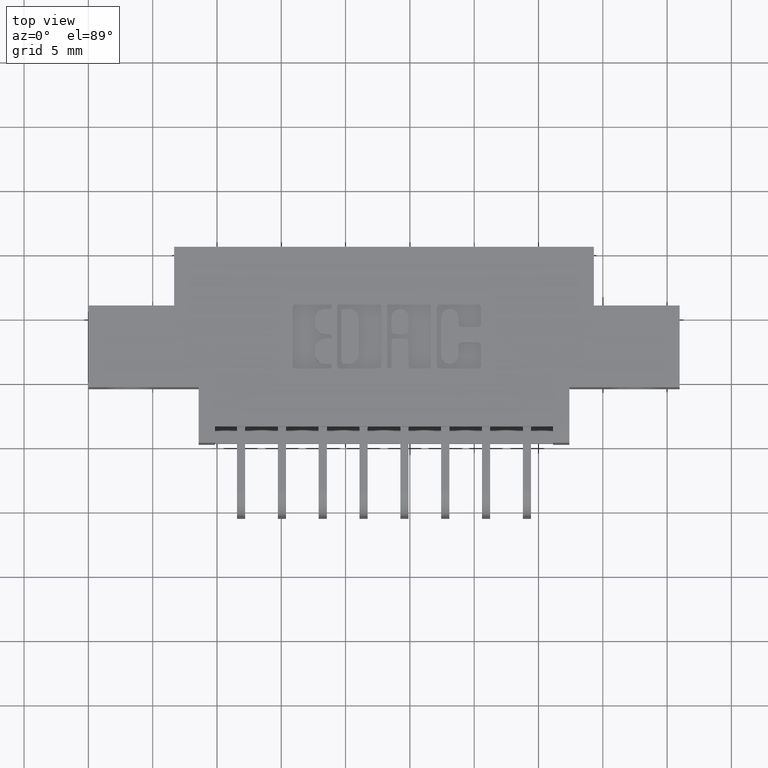
[diagram: clean part render]
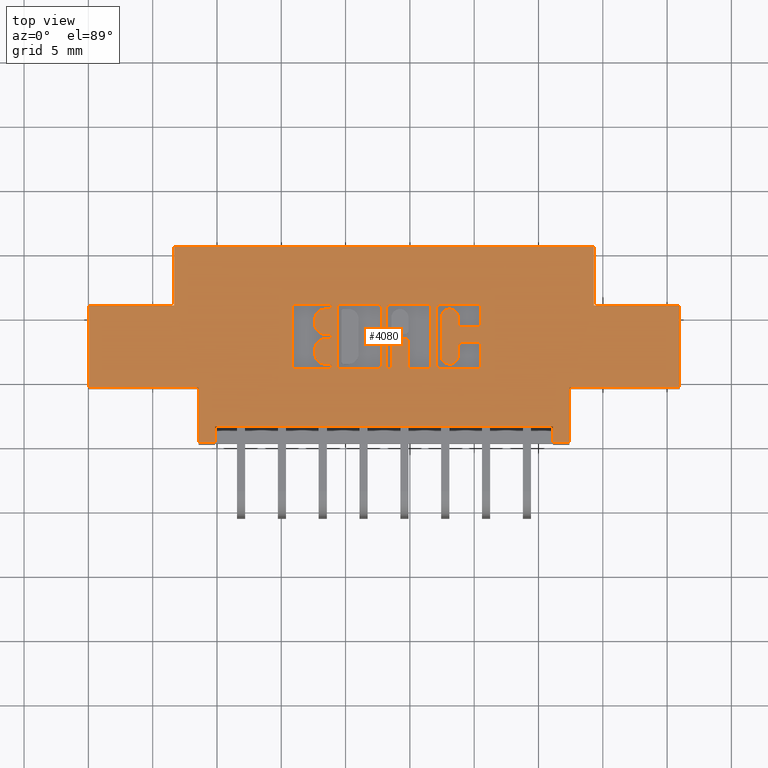
[diagram: same view with one face highlighted and labeled with its STEP entity id]
A machine part, top view. The second image highlights one B-rep face of the part: STEP entity #4080.
In plain terms, the highlighted planar face has unit normal (0, 0, -1).
Its self-contained STEP definition (entity closure, byte-faithful):
#6 = DIRECTION ( 'NONE',  ( -1.000000000000000000, 0.0000000000000000000, 0.0000000000000000000 ) ) ;
#25 = ORIENTED_EDGE ( 'NONE', *, *, #10010, .F. ) ;
#29 = LINE ( 'NONE', #836, #12358 ) ;
#32 = EDGE_CURVE ( 'NONE', #1142, #4403, #7017, .T. ) ;
#59 = DIRECTION ( 'NONE',  ( 1.000000000000000000, -0.0000000000000000000, -0.0000000000000000000 ) ) ;
#69 = VERTEX_POINT ( 'NONE', #12059 ) ;
#75 = VERTEX_POINT ( 'NONE', #8448 ) ;
#77 = EDGE_LOOP ( 'NONE', ( #8104, #9866, #8359, #11390, #12385, #6584, #12799, #869, #2582, #9027, #4754, #200, #8208, #5541, #12244, #2250 ) ) ;
#106 = VERTEX_POINT ( 'NONE', #3118 ) ;
#115 = CARTESIAN_POINT ( 'NONE',  ( 0.7246370600050841000, 0.3181290308573566100, 0.0000000000000000000 ) ) ;
#124 = VECTOR ( 'NONE', #732, 39.37007874015748100 ) ;
#168 = CIRCLE ( 'NONE', #9248, 0.009815670203788042300 ) ;
#189 = CARTESIAN_POINT ( 'NONE',  ( 1.810000000000000100, 0.4199999999999999800, 0.0000000000000000000 ) ) ;
#191 = EDGE_CURVE ( 'NONE', #9264, #11067, #4993, .T. ) ;
#193 = VERTEX_POINT ( 'NONE', #5611 ) ;
#200 = ORIENTED_EDGE ( 'NONE', *, *, #5115, .T. ) ;
#232 = ORIENTED_EDGE ( 'NONE', *, *, #3123, .F. ) ;
#235 = ORIENTED_EDGE ( 'NONE', *, *, #2152, .F. ) ;
#256 = LINE ( 'NONE', #2873, #12873 ) ;
#272 = CARTESIAN_POINT ( 'NONE',  ( 0.0000000000000000000, 0.0000000000000000000, 0.0000000000000000000 ) ) ;
#302 = CARTESIAN_POINT ( 'NONE',  ( 0.7381336065353100200, 0.3250000000000201600, 0.0000000000000000000 ) ) ;
#305 = EDGE_CURVE ( 'NONE', #2327, #4636, #4854, .T. ) ;
#312 = AXIS2_PLACEMENT_3D ( 'NONE', #2247, #7260, #4289 ) ;
#345 = ORIENTED_EDGE ( 'NONE', *, *, #191, .T. ) ;
#350 = LINE ( 'NONE', #12554, #10627 ) ;
#360 = CARTESIAN_POINT ( 'NONE',  ( 1.076038053301265500, 0.2366589681657897700, 0.0000000000000000000 ) ) ;
#403 = VERTEX_POINT ( 'NONE', #6404 ) ;
#511 = CIRCLE ( 'NONE', #3816, 0.009815670203796920600 ) ;
#538 = LINE ( 'NONE', #923, #1772 ) ;
#557 = EDGE_CURVE ( 'NONE', #9100, #6440, #11625, .T. ) ;
#594 = EDGE_CURVE ( 'NONE', #2855, #10272, #4505, .T. ) ;
#631 = DIRECTION ( 'NONE',  ( 0.0000000000000000000, 1.000000000000000000, -0.0000000000000000000 ) ) ;
#633 = DIRECTION ( 'NONE',  ( -1.000000000000000000, -1.189163988687022500E-013, 0.0000000000000000000 ) ) ;
#649 = VERTEX_POINT ( 'NONE', #7257 ) ;
#678 = ORIENTED_EDGE ( 'NONE', *, *, #6517, .F. ) ;
#688 = AXIS2_PLACEMENT_3D ( 'NONE', #10535, #10803, #9839 ) ;
#703 = ORIENTED_EDGE ( 'NONE', *, *, #5933, .F. ) ;
#717 = CARTESIAN_POINT ( 'NONE',  ( 0.7381336065353100200, 0.3250000000000201600, 0.0000000000000000000 ) ) ;
#732 = DIRECTION ( 'NONE',  ( 0.0000000000000000000, -1.000000000000000000, 0.0000000000000000000 ) ) ;
#735 = VERTEX_POINT ( 'NONE', #1371 ) ;
#741 = AXIS2_PLACEMENT_3D ( 'NONE', #717, #1852, #9717 ) ;
#756 = LINE ( 'NONE', #11986, #6529 ) ;
#775 = DIRECTION ( 'NONE',  ( -0.0000000000000000000, 1.000000000000000000, -0.0000000000000000000 ) ) ;
#794 = CARTESIAN_POINT ( 'NONE',  ( 0.7381336065353514300, 0.4162857328953860600, 0.0000000000000000000 ) ) ;
#833 = CARTESIAN_POINT ( 'NONE',  ( 1.810000000000000100, 0.5999999999999999800, 0.0000000000000000000 ) ) ;
#836 = CARTESIAN_POINT ( 'NONE',  ( 0.2625000000000000100, 0.4199999999999999800, 0.0000000000000000000 ) ) ;
#852 = VERTEX_POINT ( 'NONE', #3116 ) ;
#869 = ORIENTED_EDGE ( 'NONE', *, *, #10355, .F. ) ;
#884 = EDGE_CURVE ( 'NONE', #1449, #9126, #10844, .T. ) ;
#889 = CARTESIAN_POINT ( 'NONE',  ( 0.7707707099630102300, 0.4133410318342099500, 0.0000000000000000000 ) ) ;
#918 = VERTEX_POINT ( 'NONE', #10511 ) ;
#923 = CARTESIAN_POINT ( 'NONE',  ( 0.0000000000000000000, 0.0000000000000000000, 0.0000000000000000000 ) ) ;
#928 = CARTESIAN_POINT ( 'NONE',  ( 1.066222383097458600, 0.2366589681657897700, 0.0000000000000000000 ) ) ;
#952 = VERTEX_POINT ( 'NONE', #9465 ) ;
#1010 = CARTESIAN_POINT ( 'NONE',  ( 0.0000000000000000000, 0.3063502266127573500, 0.0000000000000000000 ) ) ;
#1025 = VERTEX_POINT ( 'NONE', #11577 ) ;
#1034 = CARTESIAN_POINT ( 'NONE',  ( 0.7381336065353356600, 0.2337142671046477700, 0.0000000000000000000 ) ) ;
#1060 = CARTESIAN_POINT ( 'NONE',  ( 0.7381336064153889400, 0.3181290308573566100, 0.0000000000000000000 ) ) ;
#1077 = DIRECTION ( 'NONE',  ( 0.0000000000000000000, 1.000000000000000000, -0.0000000000000000000 ) ) ;
#1079 = ORIENTED_EDGE ( 'NONE', *, *, #6640, .T. ) ;
#1085 = DIRECTION ( 'NONE',  ( 1.000000000000000000, 0.0000000000000000000, 0.0000000000000000000 ) ) ;
#1142 = VERTEX_POINT ( 'NONE', #3098 ) ;
#1167 = CARTESIAN_POINT ( 'NONE',  ( 0.3375000000000001300, 0.0000000000000000000, 0.0000000000000000000 ) ) ;
#1232 = CARTESIAN_POINT ( 'NONE',  ( 0.9371463199174503400, 0.3083133606535453700, 0.0000000000000000000 ) ) ;
#1255 = DIRECTION ( 'NONE',  ( 1.000000000000000000, 0.0000000000000000000, 0.0000000000000000000 ) ) ;
#1265 = AXIS2_PLACEMENT_3D ( 'NONE', #6514, #2064, #10148 ) ;
#1300 = EDGE_LOOP ( 'NONE', ( #11209, #2968, #12006, #6008, #9976, #235, #1430, #10022, #8355, #5066, #5649, #11569, #8981, #11113, #9897, #9263, #8320, #2706, #11795, #703, #7421 ) ) ;
#1313 = VERTEX_POINT ( 'NONE', #7660 ) ;
#1322 = CARTESIAN_POINT ( 'NONE',  ( 1.039229290037011700, 0.4133410318342102300, 0.0000000000000000000 ) ) ;
#1355 = DIRECTION ( 'NONE',  ( 1.000000000000000000, 0.0000000000000000000, 0.0000000000000000000 ) ) ;
#1371 = CARTESIAN_POINT ( 'NONE',  ( 0.7707707099629761400, 0.2268432979619829900, 0.0000000000000000000 ) ) ;
#1392 = VECTOR ( 'NONE', #59, 39.37007874015748100 ) ;
#1395 = AXIS2_PLACEMENT_3D ( 'NONE', #1034, #6979, #9989 ) ;
#1418 = CARTESIAN_POINT ( 'NONE',  ( 1.191862961706134500, 0.2268432979619829900, 0.0000000000000000000 ) ) ;
#1424 = LINE ( 'NONE', #5974, #1589 ) ;
#1430 = ORIENTED_EDGE ( 'NONE', *, *, #7328, .F. ) ;
#1445 = VECTOR ( 'NONE', #10748, 39.37007874015748100 ) ;
#1449 = VERTEX_POINT ( 'NONE', #115 ) ;
#1456 = EDGE_CURVE ( 'NONE', #2572, #12152, #1470, .T. ) ;
#1470 = CIRCLE ( 'NONE', #10415, 0.009815670203840084000 ) ;
#1490 = FACE_BOUND ( 'NONE', #8690, .T. ) ;
#1575 = CARTESIAN_POINT ( 'NONE',  ( 1.039229290037013900, 0.4231567020380064300, 0.0000000000000000000 ) ) ;
#1589 = VECTOR ( 'NONE', #11985, 39.37007874015748100 ) ;
#1593 = DIRECTION ( 'NONE',  ( 1.000000000000000000, 0.0000000000000000000, 0.0000000000000000000 ) ) ;
#1630 = CARTESIAN_POINT ( 'NONE',  ( 0.3375000000000001300, 0.1699999999999999800, 0.0000000000000000000 ) ) ;
#1718 = DIRECTION ( 'NONE',  ( -0.0000000000000000000, 0.0000000000000000000, 1.000000000000000000 ) ) ;
#1724 = DIRECTION ( 'NONE',  ( -0.0000000000000000000, 0.0000000000000000000, 1.000000000000000000 ) ) ;
#1732 = LINE ( 'NONE', #7777, #11699 ) ;
#1744 = AXIS2_PLACEMENT_3D ( 'NONE', #1232, #7231, #10110 ) ;
#1772 = VECTOR ( 'NONE', #1992, 39.37007874015748100 ) ;
#1783 = CARTESIAN_POINT ( 'NONE',  ( 0.0000000000000000000, 0.1699999999999999800, 0.0000000000000000000 ) ) ;
#1789 = CIRCLE ( 'NONE', #8847, 0.009815670203806754800 ) ;
#1837 = LINE ( 'NONE', #272, #6859 ) ;
#1850 = AXIS2_PLACEMENT_3D ( 'NONE', #8528, #7626, #10583 ) ;
#1852 = DIRECTION ( 'NONE',  ( -0.0000000000000000000, 0.0000000000000000000, 1.000000000000000000 ) ) ;
#1854 = CARTESIAN_POINT ( 'NONE',  ( 1.079964321382818500, 0.3831578459575294400, 0.0000000000000000000 ) ) ;
#1856 = CARTESIAN_POINT ( 'NONE',  ( 1.079964321382818500, 0.2668421540424528200, 0.0000000000000000000 ) ) ;
#1892 = CARTESIAN_POINT ( 'NONE',  ( 1.132478156973179000, 0.2965345564089684700, 0.0000000000000000000 ) ) ;
#1975 = VERTEX_POINT ( 'NONE', #6416 ) ;
#1983 = EDGE_CURVE ( 'NONE', #9264, #5960, #5675, .T. ) ;
#1992 = DIRECTION ( 'NONE',  ( 1.000000000000000000, 0.0000000000000000000, 0.0000000000000000000 ) ) ;
#1998 = VERTEX_POINT ( 'NONE', #5187 ) ;
#1999 = CARTESIAN_POINT ( 'NONE',  ( 0.0000000000000000000, 0.4231567020380508400, 0.0000000000000000000 ) ) ;
#2001 = VERTEX_POINT ( 'NONE', #5426 ) ;
#2015 = CARTESIAN_POINT ( 'NONE',  ( 0.0000000000000000000, 0.4199999999999999800, 0.0000000000000000000 ) ) ;
#2064 = DIRECTION ( 'NONE',  ( -0.0000000000000000000, 0.0000000000000000000, 1.000000000000000000 ) ) ;
#2066 = LINE ( 'NONE', #2856, #6421 ) ;
#2067 = DIRECTION ( 'NONE',  ( 0.0000000000000000000, -1.000000000000000000, 0.0000000000000000000 ) ) ;
#2152 = EDGE_CURVE ( 'NONE', #4261, #193, #3658, .T. ) ;
#2158 = CARTESIAN_POINT ( 'NONE',  ( 0.7707707099629761400, 0.2366589681657897700, 0.0000000000000000000 ) ) ;
#2203 = VECTOR ( 'NONE', #10344, 39.37007874015748100 ) ;
#2207 = VERTEX_POINT ( 'NONE', #4157 ) ;
#2227 = VECTOR ( 'NONE', #11061, 39.37007874015748100 ) ;
#2234 = CARTESIAN_POINT ( 'NONE',  ( 1.472500000000000100, 0.1699999999999999800, 1.389974117032246100E-016 ) ) ;
#2244 = AXIS2_PLACEMENT_3D ( 'NONE', #889, #5005, #11940 ) ;
#2247 = CARTESIAN_POINT ( 'NONE',  ( 0.7246370600050841000, 0.3632811137948581700, 0.0000000000000000000 ) ) ;
#2250 = ORIENTED_EDGE ( 'NONE', *, *, #4846, .T. ) ;
#2273 = CIRCLE ( 'NONE', #3119, 0.006870969142663594700 ) ;
#2286 = VECTOR ( 'NONE', #5087, 39.37007874015748100 ) ;
#2293 = CARTESIAN_POINT ( 'NONE',  ( 1.191862961706132000, 0.4133410318342107300, 0.0000000000000000000 ) ) ;
#2295 = DIRECTION ( 'NONE',  ( 0.0000000000000000000, 1.000000000000000000, -0.0000000000000000000 ) ) ;
#2296 = LINE ( 'NONE', #1010, #8855 ) ;
#2311 = EDGE_LOOP ( 'NONE', ( #8311, #2942, #6605, #9429, #12811, #10592, #10300, #4433 ) ) ;
#2326 = DIRECTION ( 'NONE',  ( -0.0000000000000000000, 0.0000000000000000000, 1.000000000000000000 ) ) ;
#2327 = VERTEX_POINT ( 'NONE', #7442 ) ;
#2328 = VERTEX_POINT ( 'NONE', #1418 ) ;
#2329 = CARTESIAN_POINT ( 'NONE',  ( 0.9135887114283309800, 0.2337142671046477700, 0.0000000000000000000 ) ) ;
#2333 = CARTESIAN_POINT ( 'NONE',  ( 0.7246370600051255100, 0.3780046191005195800, 0.0000000000000000000 ) ) ;
#2337 = EDGE_CURVE ( 'NONE', #2328, #12290, #8302, .T. ) ;
#2338 = AXIS2_PLACEMENT_3D ( 'NONE', #3731, #9783, #3770 ) ;
#2346 = LINE ( 'NONE', #833, #7048 ) ;
#2392 = EDGE_CURVE ( 'NONE', #3537, #11095, #10456, .T. ) ;
#2420 = VERTEX_POINT ( 'NONE', #9668 ) ;
#2520 = AXIS2_PLACEMENT_3D ( 'NONE', #12191, #9295, #1255 ) ;
#2549 = CIRCLE ( 'NONE', #312, 0.03141014465217440600 ) ;
#2553 = VECTOR ( 'NONE', #2610, 39.37007874015748100 ) ;
#2572 = VERTEX_POINT ( 'NONE', #4210 ) ;
#2582 = ORIENTED_EDGE ( 'NONE', *, *, #11199, .F. ) ;
#2610 = DIRECTION ( 'NONE',  ( -0.0000000000000000000, 1.000000000000000000, -0.0000000000000000000 ) ) ;
#2642 = LINE ( 'NONE', #8503, #2971 ) ;
#2671 = DIRECTION ( 'NONE',  ( -0.0000000000000000000, 0.0000000000000000000, 1.000000000000000000 ) ) ;
#2690 = CARTESIAN_POINT ( 'NONE',  ( 1.076038053301265500, 0.2268432979619829900, 0.0000000000000000000 ) ) ;
#2706 = ORIENTED_EDGE ( 'NONE', *, *, #11682, .F. ) ;
#2711 = DIRECTION ( 'NONE',  ( -1.000000000000000000, -0.0000000000000000000, -0.0000000000000000000 ) ) ;
#2714 = CARTESIAN_POINT ( 'NONE',  ( 1.191862961706168500, 0.4231567020380508400, 0.0000000000000000000 ) ) ;
#2726 = EDGE_CURVE ( 'NONE', #7659, #9294, #168, .T. ) ;
#2730 = FACE_OUTER_BOUND ( 'NONE', #77, .T. ) ;
#2752 = DIRECTION ( 'NONE',  ( -0.0000000000000000000, 0.0000000000000000000, 1.000000000000000000 ) ) ;
#2771 = EDGE_CURVE ( 'NONE', #7506, #2207, #3774, .T. ) ;
#2774 = CARTESIAN_POINT ( 'NONE',  ( 0.0000000000000000000, 0.5999999999999999800, 0.0000000000000000000 ) ) ;
#2780 = DIRECTION ( 'NONE',  ( -1.000000000000000000, 0.0000000000000000000, -0.0000000000000000000 ) ) ;
#2804 = CARTESIAN_POINT ( 'NONE',  ( 0.6338421106199381100, 0.4231567020380325200, 0.0000000000000000000 ) ) ;
#2838 = EDGE_CURVE ( 'NONE', #9349, #7441, #2346, .T. ) ;
#2855 = VERTEX_POINT ( 'NONE', #12062 ) ;
#2856 = CARTESIAN_POINT ( 'NONE',  ( -0.0000000000000000000, 0.2268432979619829900, 0.0000000000000000000 ) ) ;
#2873 = CARTESIAN_POINT ( 'NONE',  ( -0.0000000000000000000, 0.4231567020380064300, 0.0000000000000000000 ) ) ;
#2876 = CARTESIAN_POINT ( 'NONE',  ( 0.9273306497136469800, 0.2337142671046477700, 0.0000000000000000000 ) ) ;
#2892 = VERTEX_POINT ( 'NONE', #9513 ) ;
#2907 = EDGE_CURVE ( 'NONE', #3916, #1975, #9004, .T. ) ;
#2942 = ORIENTED_EDGE ( 'NONE', *, *, #6576, .F. ) ;
#2946 = VECTOR ( 'NONE', #631, 39.37007874015748100 ) ;
#2957 = EDGE_CURVE ( 'NONE', #6186, #10143, #4400, .T. ) ;
#2964 = DIRECTION ( 'NONE',  ( 0.0000000000000000000, 0.0000000000000000000, -1.000000000000000000 ) ) ;
#2967 = ORIENTED_EDGE ( 'NONE', *, *, #12158, .F. ) ;
#2968 = ORIENTED_EDGE ( 'NONE', *, *, #7146, .F. ) ;
#2971 = VECTOR ( 'NONE', #7604, 39.37007874015748100 ) ;
#2989 = LINE ( 'NONE', #7314, #2203 ) ;
#3019 = EDGE_CURVE ( 'NONE', #12041, #12038, #2989, .T. ) ;
#3098 = CARTESIAN_POINT ( 'NONE',  ( 1.049044960240806700, 0.4133410318342007900, 0.0000000000000000000 ) ) ;
#3103 = EDGE_CURVE ( 'NONE', #3367, #12922, #12170, .T. ) ;
#3113 = CARTESIAN_POINT ( 'NONE',  ( 0.3375000000000001300, 0.1699999999999999800, 0.0000000000000000000 ) ) ;
#3116 = CARTESIAN_POINT ( 'NONE',  ( 0.7381336065353514300, 0.4094147637527355600, 0.0000000000000000000 ) ) ;
#3118 = CARTESIAN_POINT ( 'NONE',  ( 1.039229290037010600, 0.2268432979619844400, 0.0000000000000000000 ) ) ;
#3119 = AXIS2_PLACEMENT_3D ( 'NONE', #302, #7330, #1355 ) ;
#3123 = EDGE_CURVE ( 'NONE', #2001, #2892, #7535, .T. ) ;
#3126 = AXIS2_PLACEMENT_3D ( 'NONE', #8462, #7485, #4467 ) ;
#3154 = LINE ( 'NONE', #1630, #11348 ) ;
#3190 = VECTOR ( 'NONE', #3758, 39.37007874015748100 ) ;
#3210 = CARTESIAN_POINT ( 'NONE',  ( 0.6932269153529097000, 0.3780046191005195800, 0.0000000000000000000 ) ) ;
#3277 = ORIENTED_EDGE ( 'NONE', *, *, #5503, .F. ) ;
#3285 = LINE ( 'NONE', #6619, #2946 ) ;
#3292 = DIRECTION ( 'NONE',  ( -0.0000000000000000000, 0.0000000000000000000, 1.000000000000000000 ) ) ;
#3306 = DIRECTION ( 'NONE',  ( -1.000000000000000000, 0.0000000000000000000, 0.0000000000000000000 ) ) ;
#3307 = ORIENTED_EDGE ( 'NONE', *, *, #7419, .F. ) ;
#3318 = EDGE_CURVE ( 'NONE', #12290, #3916, #2642, .T. ) ;
#3325 = DIRECTION ( 'NONE',  ( -0.0000000000000000000, 0.0000000000000000000, 1.000000000000000000 ) ) ;
#3363 = EDGE_CURVE ( 'NONE', #3367, #12419, #5782, .T. ) ;
#3367 = VERTEX_POINT ( 'NONE', #4675 ) ;
#3440 = CARTESIAN_POINT ( 'NONE',  ( 0.0000000000000000000, 0.4231567020380508400, 0.0000000000000000000 ) ) ;
#3448 = CARTESIAN_POINT ( 'NONE',  ( 1.079964321382818500, 0.0000000000000000000, 0.0000000000000000000 ) ) ;
#3471 = EDGE_CURVE ( 'NONE', #403, #6186, #6395, .T. ) ;
#3493 = DIRECTION ( 'NONE',  ( 1.000000000000000000, 0.0000000000000000000, 0.0000000000000000000 ) ) ;
#3502 = ORIENTED_EDGE ( 'NONE', *, *, #2337, .F. ) ;
#3532 = DIRECTION ( 'NONE',  ( 0.0000000000000000000, -1.000000000000000000, 0.0000000000000000000 ) ) ;
#3537 = VERTEX_POINT ( 'NONE', #6680 ) ;
#3548 = DIRECTION ( 'NONE',  ( -0.0000000000000000000, 0.0000000000000000000, 1.000000000000000000 ) ) ;
#3556 = CARTESIAN_POINT ( 'NONE',  ( 1.049044960240806700, 0.0000000000000000000, 0.0000000000000000000 ) ) ;
#3565 = CARTESIAN_POINT ( 'NONE',  ( -0.0000000000000000000, 0.4094147637527355600, 0.0000000000000000000 ) ) ;
#3592 = DIRECTION ( 'NONE',  ( 1.000000000000000000, 0.0000000000000000000, 0.0000000000000000000 ) ) ;
#3610 = ORIENTED_EDGE ( 'NONE', *, *, #3103, .T. ) ;
#3643 = VECTOR ( 'NONE', #11681, 39.37007874015748100 ) ;
#3658 = CIRCLE ( 'NONE', #741, 0.006870969142663594700 ) ;
#3693 = DIRECTION ( 'NONE',  ( -1.000000000000000000, 0.0000000000000000000, -2.449293598294706900E-016 ) ) ;
#3706 = ORIENTED_EDGE ( 'NONE', *, *, #5791, .T. ) ;
#3722 = EDGE_CURVE ( 'NONE', #2420, #1313, #11467, .T. ) ;
#3723 = DIRECTION ( 'NONE',  ( 1.000000000000000000, 0.0000000000000000000, 0.0000000000000000000 ) ) ;
#3727 = CARTESIAN_POINT ( 'NONE',  ( 0.9234043816321275700, 0.4231567020380064300, 0.0000000000000000000 ) ) ;
#3731 = CARTESIAN_POINT ( 'NONE',  ( 0.9234043816321275700, 0.4133410318342099500, 0.0000000000000000000 ) ) ;
#3741 = CARTESIAN_POINT ( 'NONE',  ( 1.106221239177992200, 0.3831578459575294400, 0.0000000000000000000 ) ) ;
#3753 = EDGE_CURVE ( 'NONE', #11277, #12680, #5148, .T. ) ;
#3758 = DIRECTION ( 'NONE',  ( 1.000000000000000000, 0.0000000000000000000, 0.0000000000000000000 ) ) ;
#3770 = DIRECTION ( 'NONE',  ( 1.000000000000000000, 0.0000000000000000000, 0.0000000000000000000 ) ) ;
#3774 = CIRCLE ( 'NONE', #2338, 0.009815670203796511200 ) ;
#3816 = AXIS2_PLACEMENT_3D ( 'NONE', #11515, #5671, #3723 ) ;
#3883 = LINE ( 'NONE', #9881, #2286 ) ;
#3916 = VERTEX_POINT ( 'NONE', #12342 ) ;
#3946 = VERTEX_POINT ( 'NONE', #2329 ) ;
#3949 = AXIS2_PLACEMENT_3D ( 'NONE', #5198, #6167, #7241 ) ;
#4015 = CARTESIAN_POINT ( 'NONE',  ( -0.0000000000000000000, 0.2268432979619829900, 0.0000000000000000000 ) ) ;
#4018 = DIRECTION ( 'NONE',  ( 1.000000000000000000, 0.0000000000000000000, 0.0000000000000000000 ) ) ;
#4052 = DIRECTION ( 'NONE',  ( -0.0000000000000000000, -1.000000000000000000, -0.0000000000000000000 ) ) ;
#4057 = DIRECTION ( 'NONE',  ( -1.000000000000000000, 0.0000000000000000000, 0.0000000000000000000 ) ) ;
#4061 = CIRCLE ( 'NONE', #7031, 0.03141014465218178200 ) ;
#4066 = AXIS2_PLACEMENT_3D ( 'NONE', #7983, #5121, #12661 ) ;
#4080 = ADVANCED_FACE ( 'NONE', ( #9428, #5432, #2730, #4189, #1490 ), #9832, .F. ) ;
#4108 = CARTESIAN_POINT ( 'NONE',  ( 0.7609550397591693400, 0.4133410318342099500, 0.0000000000000000000 ) ) ;
#4117 = CIRCLE ( 'NONE', #688, 0.009815670203822599700 ) ;
#4120 = AXIS2_PLACEMENT_3D ( 'NONE', #3741, #4713, #11491 ) ;
#4150 = LINE ( 'NONE', #4015, #12058 ) ;
#4157 = CARTESIAN_POINT ( 'NONE',  ( 0.9135887114283309800, 0.4133410318342099500, 0.0000000000000000000 ) ) ;
#4176 = VERTEX_POINT ( 'NONE', #9926 ) ;
#4189 = FACE_BOUND ( 'NONE', #2311, .T. ) ;
#4194 = DIRECTION ( 'NONE',  ( -1.000000000000000000, 0.0000000000000000000, 0.0000000000000000000 ) ) ;
#4208 = LINE ( 'NONE', #9558, #10694 ) ;
#4210 = CARTESIAN_POINT ( 'NONE',  ( 1.201678631909972200, 0.4133410318341946300, 0.0000000000000000000 ) ) ;
#4239 = EDGE_CURVE ( 'NONE', #5501, #12038, #12075, .T. ) ;
#4250 = CARTESIAN_POINT ( 'NONE',  ( 0.9798444853039848200, 0.3083133606535432600, 0.0000000000000000000 ) ) ;
#4261 = VERTEX_POINT ( 'NONE', #1060 ) ;
#4289 = DIRECTION ( 'NONE',  ( 1.000000000000000000, 0.0000000000000000000, 0.0000000000000000000 ) ) ;
#4313 = VECTOR ( 'NONE', #4052, 39.37007874015748100 ) ;
#4335 = ORIENTED_EDGE ( 'NONE', *, *, #5166, .T. ) ;
#4338 = DIRECTION ( 'NONE',  ( -1.000000000000000000, -3.530861605407645300E-014, 0.0000000000000000000 ) ) ;
#4344 = CIRCLE ( 'NONE', #1744, 0.009815670203803203800 ) ;
#4354 = CIRCLE ( 'NONE', #12156, 0.02625691779518036400 ) ;
#4361 = VECTOR ( 'NONE', #4338, 39.37007874015748100 ) ;
#4387 = EDGE_CURVE ( 'NONE', #735, #5024, #4150, .T. ) ;
#4390 = AXIS2_PLACEMENT_3D ( 'NONE', #5887, #2964, #2780 ) ;
#4400 = CIRCLE ( 'NONE', #3126, 0.009815670203805936000 ) ;
#4403 = VERTEX_POINT ( 'NONE', #5896 ) ;
#4409 = VECTOR ( 'NONE', #2295, 39.37007874015748100 ) ;
#4425 = DIRECTION ( 'NONE',  ( 0.0000000000000000000, 1.000000000000000000, -0.0000000000000000000 ) ) ;
#4433 = ORIENTED_EDGE ( 'NONE', *, *, #10529, .F. ) ;
#4466 = DIRECTION ( 'NONE',  ( 1.000000000000000000, 0.0000000000000000000, 0.0000000000000000000 ) ) ;
#4467 = DIRECTION ( 'NONE',  ( 1.000000000000000000, 0.0000000000000000000, 0.0000000000000000000 ) ) ;
#4505 = CIRCLE ( 'NONE', #11649, 0.009815670203840902800 ) ;
#4541 = LINE ( 'NONE', #1999, #9975 ) ;
#4612 = CARTESIAN_POINT ( 'NONE',  ( 0.7707707099630102300, 0.4231567020380508400, 0.0000000000000000000 ) ) ;
#4627 = CARTESIAN_POINT ( 'NONE',  ( 1.132478156973165900, 0.3637718973050450000, 0.0000000000000000000 ) ) ;
#4636 = VERTEX_POINT ( 'NONE', #12835 ) ;
#4675 = CARTESIAN_POINT ( 'NONE',  ( 0.9798444853039848200, 0.2366589681657876300, 0.0000000000000000000 ) ) ;
#4696 = CARTESIAN_POINT ( 'NONE',  ( 1.142293827176967100, 0.2965345564089693600, 0.0000000000000000000 ) ) ;
#4711 = VECTOR ( 'NONE', #7253, 39.37007874015748100 ) ;
#4713 = DIRECTION ( 'NONE',  ( -0.0000000000000000000, 0.0000000000000000000, 1.000000000000000000 ) ) ;
#4719 = ORIENTED_EDGE ( 'NONE', *, *, #2392, .T. ) ;
#4745 = EDGE_CURVE ( 'NONE', #6440, #6180, #8329, .T. ) ;
#4754 = ORIENTED_EDGE ( 'NONE', *, *, #3019, .F. ) ;
#4785 = VERTEX_POINT ( 'NONE', #928 ) ;
#4791 = DIRECTION ( 'NONE',  ( 1.000000000000000000, 0.0000000000000000000, 0.0000000000000000000 ) ) ;
#4833 = DIRECTION ( 'NONE',  ( 1.000000000000000000, 0.0000000000000000000, 0.0000000000000000000 ) ) ;
#4846 = EDGE_CURVE ( 'NONE', #5397, #11535, #1424, .T. ) ;
#4854 = CIRCLE ( 'NONE', #1395, 0.006870969142662229500 ) ;
#4959 = CARTESIAN_POINT ( 'NONE',  ( 0.0000000000000000000, 0.2268432979619844400, 0.0000000000000000000 ) ) ;
#4969 = AXIS2_PLACEMENT_3D ( 'NONE', #9173, #3292, #11249 ) ;
#4993 = CIRCLE ( 'NONE', #4120, 0.02625691779517380600 ) ;
#5005 = DIRECTION ( 'NONE',  ( -0.0000000000000000000, 0.0000000000000000000, 1.000000000000000000 ) ) ;
#5019 = CARTESIAN_POINT ( 'NONE',  ( 0.8964112885716690700, 0.2366589681657897700, 0.0000000000000000000 ) ) ;
#5024 = VERTEX_POINT ( 'NONE', #11629 ) ;
#5030 = EDGE_CURVE ( 'NONE', #5397, #12671, #11236, .T. ) ;
#5055 = VECTOR ( 'NONE', #3493, 39.37007874015748100 ) ;
#5066 = ORIENTED_EDGE ( 'NONE', *, *, #9207, .T. ) ;
#5087 = DIRECTION ( 'NONE',  ( -0.0000000000000000000, -1.000000000000000000, -0.0000000000000000000 ) ) ;
#5088 = CARTESIAN_POINT ( 'NONE',  ( 0.0000000000000000000, 0.5999999999999999800, 0.0000000000000000000 ) ) ;
#5115 = EDGE_CURVE ( 'NONE', #12041, #11586, #3154, .T. ) ;
#5121 = DIRECTION ( 'NONE',  ( -0.0000000000000000000, 0.0000000000000000000, 1.000000000000000000 ) ) ;
#5148 = LINE ( 'NONE', #8286, #4361 ) ;
#5150 = LINE ( 'NONE', #4959, #11796 ) ;
#5166 = EDGE_CURVE ( 'NONE', #7506, #10086, #256, .T. ) ;
#5187 = CARTESIAN_POINT ( 'NONE',  ( 0.8865956183678962400, 0.4231567020380508400, 0.0000000000000000000 ) ) ;
#5198 = CARTESIAN_POINT ( 'NONE',  ( 0.9204596805709870400, 0.2337142671046477700, 0.0000000000000000000 ) ) ;
#5257 = VERTEX_POINT ( 'NONE', #2804 ) ;
#5350 = CARTESIAN_POINT ( 'NONE',  ( 0.7381336065353100200, 0.3318709691426837100, 0.0000000000000000000 ) ) ;
#5361 = VERTEX_POINT ( 'NONE', #11957 ) ;
#5397 = VERTEX_POINT ( 'NONE', #6162 ) ;
#5404 = LINE ( 'NONE', #6311, #2553 ) ;
#5426 = CARTESIAN_POINT ( 'NONE',  ( 1.191862961706167100, 0.3539562271012334200, 0.0000000000000000000 ) ) ;
#5431 = CARTESIAN_POINT ( 'NONE',  ( 1.076038053301299600, 0.4133410318342099500, 0.0000000000000000000 ) ) ;
#5432 = FACE_BOUND ( 'NONE', #1300, .T. ) ;
#5462 = DIRECTION ( 'NONE',  ( 0.0000000000000000000, 1.000000000000000000, -0.0000000000000000000 ) ) ;
#5498 = CARTESIAN_POINT ( 'NONE',  ( 1.132478156973165900, 0.0000000000000000000, 0.0000000000000000000 ) ) ;
#5501 = VERTEX_POINT ( 'NONE', #2015 ) ;
#5503 = EDGE_CURVE ( 'NONE', #10272, #4785, #11230, .T. ) ;
#5514 = ORIENTED_EDGE ( 'NONE', *, *, #3753, .T. ) ;
#5526 = CARTESIAN_POINT ( 'NONE',  ( 0.7609550397591693400, 0.0000000000000000000, 0.0000000000000000000 ) ) ;
#5541 = ORIENTED_EDGE ( 'NONE', *, *, #12864, .F. ) ;
#5602 = VECTOR ( 'NONE', #3693, 39.37007874015748100 ) ;
#5611 = CARTESIAN_POINT ( 'NONE',  ( 0.7450045756779736200, 0.3250000000000201600, 0.0000000000000000000 ) ) ;
#5615 = EDGE_CURVE ( 'NONE', #5257, #403, #4117, .T. ) ;
#5649 = ORIENTED_EDGE ( 'NONE', *, *, #7541, .F. ) ;
#5666 = DIRECTION ( 'NONE',  ( -0.0000000000000000000, 0.0000000000000000000, 1.000000000000000000 ) ) ;
#5671 = DIRECTION ( 'NONE',  ( -0.0000000000000000000, 0.0000000000000000000, 1.000000000000000000 ) ) ;
#5675 = LINE ( 'NONE', #5498, #2227 ) ;
#5686 = EDGE_CURVE ( 'NONE', #5361, #9126, #8899, .T. ) ;
#5708 = EDGE_CURVE ( 'NONE', #4176, #11670, #5404, .T. ) ;
#5740 = CARTESIAN_POINT ( 'NONE',  ( 0.9896601555077880800, 0.2366589681657876300, 0.0000000000000000000 ) ) ;
#5752 = CIRCLE ( 'NONE', #7900, 0.009815670203806754800 ) ;
#5782 = CIRCLE ( 'NONE', #7147, 0.009815670203803203800 ) ;
#5791 = EDGE_CURVE ( 'NONE', #12922, #11277, #511, .T. ) ;
#5833 = ORIENTED_EDGE ( 'NONE', *, *, #1983, .F. ) ;
#5834 = CARTESIAN_POINT ( 'NONE',  ( 0.7609550397591693400, 0.2366589681657897700, 0.0000000000000000000 ) ) ;
#5846 = DIRECTION ( 'NONE',  ( 1.000000000000000000, 0.0000000000000000000, 0.0000000000000000000 ) ) ;
#5887 = CARTESIAN_POINT ( 'NONE',  ( 0.0000000000000000000, 0.5999999999999999800, 0.0000000000000000000 ) ) ;
#5890 = DIRECTION ( 'NONE',  ( 1.000000000000000000, 7.203446383881645100E-015, 0.0000000000000000000 ) ) ;
#5896 = CARTESIAN_POINT ( 'NONE',  ( 1.049044960240806700, 0.2366589681657806600, 0.0000000000000000000 ) ) ;
#5912 = CIRCLE ( 'NONE', #8386, 0.009815670203841039800 ) ;
#5933 = EDGE_CURVE ( 'NONE', #852, #2420, #6599, .T. ) ;
#5960 = VERTEX_POINT ( 'NONE', #4627 ) ;
#5974 = CARTESIAN_POINT ( 'NONE',  ( 1.422500000000000100, 0.05000000000000000300, 0.0000000000000000000 ) ) ;
#5987 = LINE ( 'NONE', #2774, #3190 ) ;
#5989 = CARTESIAN_POINT ( 'NONE',  ( 0.9798444853039848200, 0.0000000000000000000, 0.0000000000000000000 ) ) ;
#6008 = ORIENTED_EDGE ( 'NONE', *, *, #11924, .F. ) ;
#6022 = EDGE_CURVE ( 'NONE', #9581, #8495, #350, .T. ) ;
#6027 = CIRCLE ( 'NONE', #9041, 0.006870969142662229500 ) ;
#6034 = CARTESIAN_POINT ( 'NONE',  ( 1.066222383097458600, 0.0000000000000000000, 0.0000000000000000000 ) ) ;
#6097 = LINE ( 'NONE', #3565, #9504 ) ;
#6154 = ORIENTED_EDGE ( 'NONE', *, *, #9990, .F. ) ;
#6162 = CARTESIAN_POINT ( 'NONE',  ( 1.422500000000000100, 0.05000000000000000300, 0.0000000000000000000 ) ) ;
#6167 = DIRECTION ( 'NONE',  ( -0.0000000000000000000, 0.0000000000000000000, 1.000000000000000000 ) ) ;
#6180 = VERTEX_POINT ( 'NONE', #5834 ) ;
#6186 = VERTEX_POINT ( 'NONE', #9380 ) ;
#6243 = VECTOR ( 'NONE', #4425, 39.37007874015748100 ) ;
#6269 = VERTEX_POINT ( 'NONE', #1856 ) ;
#6283 = CARTESIAN_POINT ( 'NONE',  ( 1.810000000000000100, 0.1699999999999999800, 2.216610706456709300E-016 ) ) ;
#6285 = EDGE_CURVE ( 'NONE', #75, #12711, #11531, .T. ) ;
#6311 = CARTESIAN_POINT ( 'NONE',  ( 1.547500000000000100, 0.4199999999999999800, 0.0000000000000000000 ) ) ;
#6329 = DIRECTION ( 'NONE',  ( 1.000000000000000000, 0.0000000000000000000, 0.0000000000000000000 ) ) ;
#6339 = CARTESIAN_POINT ( 'NONE',  ( 1.201678631909972200, 0.0000000000000000000, 0.0000000000000000000 ) ) ;
#6395 = LINE ( 'NONE', #6986, #12779 ) ;
#6396 = EDGE_CURVE ( 'NONE', #12152, #2855, #7232, .T. ) ;
#6404 = CARTESIAN_POINT ( 'NONE',  ( 0.6240264404161155500, 0.4133410318342099500, 0.0000000000000000000 ) ) ;
#6416 = CARTESIAN_POINT ( 'NONE',  ( 1.191862961706156700, 0.3063502266127573500, 0.0000000000000000000 ) ) ;
#6421 = VECTOR ( 'NONE', #4018, 39.37007874015748100 ) ;
#6440 = VERTEX_POINT ( 'NONE', #4108 ) ;
#6447 = ORIENTED_EDGE ( 'NONE', *, *, #2907, .F. ) ;
#6514 = CARTESIAN_POINT ( 'NONE',  ( 0.8865956183678621600, 0.2366589681657897700, 0.0000000000000000000 ) ) ;
#6517 = EDGE_CURVE ( 'NONE', #9690, #2328, #2066, .T. ) ;
#6529 = VECTOR ( 'NONE', #10136, 39.37007874015748100 ) ;
#6554 = CIRCLE ( 'NONE', #2520, 0.009815670203796237100 ) ;
#6557 = ORIENTED_EDGE ( 'NONE', *, *, #3363, .F. ) ;
#6576 = EDGE_CURVE ( 'NONE', #8218, #1025, #1732, .T. ) ;
#6584 = ORIENTED_EDGE ( 'NONE', *, *, #5708, .T. ) ;
#6599 = CIRCLE ( 'NONE', #8082, 0.006870969142648433200 ) ;
#6605 = ORIENTED_EDGE ( 'NONE', *, *, #10996, .F. ) ;
#6619 = CARTESIAN_POINT ( 'NONE',  ( 0.6932269153529097000, 0.0000000000000000000, 0.0000000000000000000 ) ) ;
#6640 = EDGE_CURVE ( 'NONE', #106, #12419, #5150, .T. ) ;
#6673 = CARTESIAN_POINT ( 'NONE',  ( 0.6932269153529279100, 0.2867188862052003600, 0.0000000000000000000 ) ) ;
#6680 = CARTESIAN_POINT ( 'NONE',  ( 0.9273306497136469800, 0.3083133606535453700, 0.0000000000000000000 ) ) ;
#6738 = DIRECTION ( 'NONE',  ( 1.000000000000000000, 0.0000000000000000000, 0.0000000000000000000 ) ) ;
#6754 = LINE ( 'NONE', #3448, #11246 ) ;
#6776 = ORIENTED_EDGE ( 'NONE', *, *, #3318, .F. ) ;
#6819 = DIRECTION ( 'NONE',  ( -0.0000000000000000000, 0.0000000000000000000, 1.000000000000000000 ) ) ;
#6826 = EDGE_CURVE ( 'NONE', #2892, #2572, #10441, .T. ) ;
#6847 = EDGE_CURVE ( 'NONE', #106, #4403, #6554, .T. ) ;
#6849 = DIRECTION ( 'NONE',  ( -0.0000000000000000000, -1.000000000000000000, -0.0000000000000000000 ) ) ;
#6859 = VECTOR ( 'NONE', #8358, 39.37007874015748100 ) ;
#6864 = DIRECTION ( 'NONE',  ( -1.000000000000000000, 0.0000000000000000000, 0.0000000000000000000 ) ) ;
#6979 = DIRECTION ( 'NONE',  ( -0.0000000000000000000, 0.0000000000000000000, 1.000000000000000000 ) ) ;
#6986 = CARTESIAN_POINT ( 'NONE',  ( 0.6240264404161155500, 0.0000000000000000000, 0.0000000000000000000 ) ) ;
#7017 = LINE ( 'NONE', #3556, #124 ) ;
#7031 = AXIS2_PLACEMENT_3D ( 'NONE', #8244, #11119, #10084 ) ;
#7048 = VECTOR ( 'NONE', #7828, 39.37007874015748100 ) ;
#7077 = VECTOR ( 'NONE', #3306, 39.37007874015748100 ) ;
#7146 = EDGE_CURVE ( 'NONE', #918, #12711, #3285, .T. ) ;
#7147 = AXIS2_PLACEMENT_3D ( 'NONE', #5740, #2671, #6738 ) ;
#7162 = EDGE_CURVE ( 'NONE', #1025, #1998, #5912, .T. ) ;
#7208 = VECTOR ( 'NONE', #1077, 39.37007874015748100 ) ;
#7222 = LINE ( 'NONE', #9833, #8603 ) ;
#7231 = DIRECTION ( 'NONE',  ( -0.0000000000000000000, 0.0000000000000000000, 1.000000000000000000 ) ) ;
#7232 = LINE ( 'NONE', #3440, #7077 ) ;
#7241 = DIRECTION ( 'NONE',  ( 1.000000000000000000, 0.0000000000000000000, 0.0000000000000000000 ) ) ;
#7253 = DIRECTION ( 'NONE',  ( -1.000000000000000000, 0.0000000000000000000, 0.0000000000000000000 ) ) ;
#7257 = CARTESIAN_POINT ( 'NONE',  ( 0.2625000000000000100, 0.4199999999999999800, 0.0000000000000000000 ) ) ;
#7260 = DIRECTION ( 'NONE',  ( -0.0000000000000000000, 0.0000000000000000000, 1.000000000000000000 ) ) ;
#7275 = CARTESIAN_POINT ( 'NONE',  ( 0.9371463199174503400, 0.3181290308573484500, 0.0000000000000000000 ) ) ;
#7314 = CARTESIAN_POINT ( 'NONE',  ( 0.0000000000000000000, 0.1699999999999999800, 0.0000000000000000000 ) ) ;
#7328 = EDGE_CURVE ( 'NONE', #1449, #4261, #10215, .T. ) ;
#7330 = DIRECTION ( 'NONE',  ( -0.0000000000000000000, 0.0000000000000000000, 1.000000000000000000 ) ) ;
#7358 = CARTESIAN_POINT ( 'NONE',  ( 0.6932269153529279100, 0.0000000000000000000, 0.0000000000000000000 ) ) ;
#7372 = EDGE_CURVE ( 'NONE', #6180, #735, #1789, .T. ) ;
#7411 = LINE ( 'NONE', #9368, #8777 ) ;
#7419 = EDGE_CURVE ( 'NONE', #3946, #11095, #11938, .T. ) ;
#7421 = ORIENTED_EDGE ( 'NONE', *, *, #8604, .F. ) ;
#7431 = CARTESIAN_POINT ( 'NONE',  ( 0.0000000000000000000, 0.4199999999999999800, 0.0000000000000000000 ) ) ;
#7441 = VERTEX_POINT ( 'NONE', #6283 ) ;
#7442 = CARTESIAN_POINT ( 'NONE',  ( 0.7450045756779978300, 0.2337142671046477700, 0.0000000000000000000 ) ) ;
#7445 = DIRECTION ( 'NONE',  ( 1.000000000000000000, 0.0000000000000000000, 0.0000000000000000000 ) ) ;
#7460 = VERTEX_POINT ( 'NONE', #9481 ) ;
#7485 = DIRECTION ( 'NONE',  ( -0.0000000000000000000, 0.0000000000000000000, 1.000000000000000000 ) ) ;
#7506 = VERTEX_POINT ( 'NONE', #3727 ) ;
#7535 = CIRCLE ( 'NONE', #8702, 0.009815670203804980100 ) ;
#7541 = EDGE_CURVE ( 'NONE', #4636, #7460, #10049, .T. ) ;
#7571 = DIRECTION ( 'NONE',  ( -0.0000000000000000000, 0.0000000000000000000, 1.000000000000000000 ) ) ;
#7604 = DIRECTION ( 'NONE',  ( 0.0000000000000000000, 1.000000000000000000, -0.0000000000000000000 ) ) ;
#7626 = DIRECTION ( 'NONE',  ( -0.0000000000000000000, 0.0000000000000000000, 1.000000000000000000 ) ) ;
#7648 = EDGE_CURVE ( 'NONE', #11535, #8495, #538, .T. ) ;
#7656 = CARTESIAN_POINT ( 'NONE',  ( 1.810000000000000100, 0.1699999999999999800, 2.216610706456709300E-016 ) ) ;
#7659 = VERTEX_POINT ( 'NONE', #11933 ) ;
#7660 = CARTESIAN_POINT ( 'NONE',  ( 0.7381336065353514300, 0.4231567020380325200, 0.0000000000000000000 ) ) ;
#7670 = ORIENTED_EDGE ( 'NONE', *, *, #12487, .T. ) ;
#7672 = ORIENTED_EDGE ( 'NONE', *, *, #6826, .F. ) ;
#7687 = LINE ( 'NONE', #7431, #5055 ) ;
#7721 = CARTESIAN_POINT ( 'NONE',  ( 1.106221239177998900, 0.2668421540424528200, 0.0000000000000000000 ) ) ;
#7743 = VERTEX_POINT ( 'NONE', #11126 ) ;
#7777 = CARTESIAN_POINT ( 'NONE',  ( 0.8964112885716690700, 0.0000000000000000000, 0.0000000000000000000 ) ) ;
#7781 = EDGE_CURVE ( 'NONE', #918, #7743, #2549, .T. ) ;
#7828 = DIRECTION ( 'NONE',  ( -0.0000000000000000000, -1.000000000000000000, -0.0000000000000000000 ) ) ;
#7900 = AXIS2_PLACEMENT_3D ( 'NONE', #360, #12182, #12302 ) ;
#7980 = CARTESIAN_POINT ( 'NONE',  ( -0.0000000000000000000, 0.3181290308573566100, 0.0000000000000000000 ) ) ;
#7983 = CARTESIAN_POINT ( 'NONE',  ( 1.191862961706153100, 0.2965345564089702500, 0.0000000000000000000 ) ) ;
#8006 = DIRECTION ( 'NONE',  ( 1.000000000000000000, 0.0000000000000000000, 0.0000000000000000000 ) ) ;
#8082 = AXIS2_PLACEMENT_3D ( 'NONE', #794, #2752, #12603 ) ;
#8103 = ORIENTED_EDGE ( 'NONE', *, *, #9189, .F. ) ;
#8104 = ORIENTED_EDGE ( 'NONE', *, *, #7648, .T. ) ;
#8200 = EDGE_LOOP ( 'NONE', ( #232, #8589, #12431, #5833, #345, #6154, #7670, #25, #11136, #8103, #6447, #6776, #3502, #678, #2967, #3277, #9399, #8676, #9243, #7672 ) ) ;
#8203 = DIRECTION ( 'NONE',  ( 1.000000000000000000, 0.0000000000000000000, 0.0000000000000000000 ) ) ;
#8208 = ORIENTED_EDGE ( 'NONE', *, *, #12177, .T. ) ;
#8218 = VERTEX_POINT ( 'NONE', #5019 ) ;
#8244 = CARTESIAN_POINT ( 'NONE',  ( 0.7246370600051096300, 0.2719953808994902100, 0.0000000000000000000 ) ) ;
#8286 = CARTESIAN_POINT ( 'NONE',  ( -1.123269580619638900E-014, 0.3181290308573153600, 0.0000000000000000000 ) ) ;
#8299 = CARTESIAN_POINT ( 'NONE',  ( 0.6338421106199185800, 0.2268432979619847700, 0.0000000000000000000 ) ) ;
#8302 = CIRCLE ( 'NONE', #10760, 0.009815670203806345400 ) ;
#8303 = ORIENTED_EDGE ( 'NONE', *, *, #12190, .F. ) ;
#8310 = VECTOR ( 'NONE', #2711, 39.37007874015748100 ) ;
#8311 = ORIENTED_EDGE ( 'NONE', *, *, #7162, .F. ) ;
#8320 = ORIENTED_EDGE ( 'NONE', *, *, #5615, .F. ) ;
#8329 = LINE ( 'NONE', #5526, #1445 ) ;
#8355 = ORIENTED_EDGE ( 'NONE', *, *, #5686, .F. ) ;
#8358 = DIRECTION ( 'NONE',  ( 1.000000000000000000, 0.0000000000000000000, 0.0000000000000000000 ) ) ;
#8359 = ORIENTED_EDGE ( 'NONE', *, *, #9107, .F. ) ;
#8386 = AXIS2_PLACEMENT_3D ( 'NONE', #9775, #1718, #4833 ) ;
#8414 = VERTEX_POINT ( 'NONE', #5350 ) ;
#8423 = LINE ( 'NONE', #9116, #12153 ) ;
#8448 = CARTESIAN_POINT ( 'NONE',  ( 0.7246370600051255100, 0.4094147637527355600, 0.0000000000000000000 ) ) ;
#8462 = CARTESIAN_POINT ( 'NONE',  ( 0.6338421106199222400, 0.2366589681657897700, 0.0000000000000000000 ) ) ;
#8495 = VERTEX_POINT ( 'NONE', #10407 ) ;
#8503 = CARTESIAN_POINT ( 'NONE',  ( 1.201678631909940400, 0.0000000000000000000, 0.0000000000000000000 ) ) ;
#8528 = CARTESIAN_POINT ( 'NONE',  ( 1.142293827176977600, 0.3637718973050450000, 0.0000000000000000000 ) ) ;
#8561 = CARTESIAN_POINT ( 'NONE',  ( 0.2625000000000000100, 0.5999999999999999800, 0.0000000000000000000 ) ) ;
#8589 = ORIENTED_EDGE ( 'NONE', *, *, #12550, .F. ) ;
#8603 = VECTOR ( 'NONE', #5890, 39.37007874015748100 ) ;
#8604 = EDGE_CURVE ( 'NONE', #75, #852, #6097, .T. ) ;
#8625 = CARTESIAN_POINT ( 'NONE',  ( 0.9273306497136469800, 0.0000000000000000000, 0.0000000000000000000 ) ) ;
#8676 = ORIENTED_EDGE ( 'NONE', *, *, #6396, .F. ) ;
#8690 = EDGE_LOOP ( 'NONE', ( #4335, #8303, #10750, #10579, #1079, #6557, #3610, #3706, #5514, #12286, #4719, #3307, #10284, #11656 ) ) ;
#8702 = AXIS2_PLACEMENT_3D ( 'NONE', #11595, #5666, #12617 ) ;
#8711 = DIRECTION ( 'NONE',  ( -0.0000000000000000000, 0.0000000000000000000, 1.000000000000000000 ) ) ;
#8757 = CARTESIAN_POINT ( 'NONE',  ( 0.7381336065353356600, 0.2337142671046477700, 0.0000000000000000000 ) ) ;
#8777 = VECTOR ( 'NONE', #3532, 39.37007874015748100 ) ;
#8847 = AXIS2_PLACEMENT_3D ( 'NONE', #2158, #2326, #12257 ) ;
#8855 = VECTOR ( 'NONE', #6, 39.37007874015748100 ) ;
#8894 = LINE ( 'NONE', #189, #1392 ) ;
#8899 = LINE ( 'NONE', #7358, #6243 ) ;
#8981 = ORIENTED_EDGE ( 'NONE', *, *, #12788, .F. ) ;
#9004 = CIRCLE ( 'NONE', #4066, 0.009815670203787221800 ) ;
#9027 = ORIENTED_EDGE ( 'NONE', *, *, #4239, .T. ) ;
#9041 = AXIS2_PLACEMENT_3D ( 'NONE', #8757, #1724, #4791 ) ;
#9051 = CARTESIAN_POINT ( 'NONE',  ( 1.142293827176977600, 0.3539562271012334200, 0.0000000000000000000 ) ) ;
#9100 = VERTEX_POINT ( 'NONE', #4612 ) ;
#9107 = EDGE_CURVE ( 'NONE', #7441, #9581, #12583, .T. ) ;
#9116 = CARTESIAN_POINT ( 'NONE',  ( 0.0000000000000000000, 0.3318709691426837100, 0.0000000000000000000 ) ) ;
#9126 = VERTEX_POINT ( 'NONE', #6673 ) ;
#9163 = DIRECTION ( 'NONE',  ( -0.0000000000000000000, 0.0000000000000000000, 1.000000000000000000 ) ) ;
#9173 = CARTESIAN_POINT ( 'NONE',  ( 0.7381336065353514300, 0.4162857328953860600, 0.0000000000000000000 ) ) ;
#9182 = AXIS2_PLACEMENT_3D ( 'NONE', #1322, #9163, #6329 ) ;
#9189 = EDGE_CURVE ( 'NONE', #1975, #7659, #2296, .T. ) ;
#9207 = EDGE_CURVE ( 'NONE', #5361, #7460, #4061, .T. ) ;
#9243 = ORIENTED_EDGE ( 'NONE', *, *, #1456, .F. ) ;
#9248 = AXIS2_PLACEMENT_3D ( 'NONE', #4696, #6819, #5846 ) ;
#9263 = ORIENTED_EDGE ( 'NONE', *, *, #3471, .F. ) ;
#9264 = VERTEX_POINT ( 'NONE', #11070 ) ;
#9294 = VERTEX_POINT ( 'NONE', #1892 ) ;
#9295 = DIRECTION ( 'NONE',  ( -0.0000000000000000000, 0.0000000000000000000, 1.000000000000000000 ) ) ;
#9349 = VERTEX_POINT ( 'NONE', #11853 ) ;
#9368 = CARTESIAN_POINT ( 'NONE',  ( 1.132478156973179000, 0.0000000000000000000, 0.0000000000000000000 ) ) ;
#9380 = CARTESIAN_POINT ( 'NONE',  ( 0.6240264404161155500, 0.2366589681657897700, 0.0000000000000000000 ) ) ;
#9399 = ORIENTED_EDGE ( 'NONE', *, *, #594, .F. ) ;
#9400 = CIRCLE ( 'NONE', #1850, 0.009815670203811672700 ) ;
#9428 = FACE_BOUND ( 'NONE', #8200, .T. ) ;
#9429 = ORIENTED_EDGE ( 'NONE', *, *, #4387, .F. ) ;
#9439 = AXIS2_PLACEMENT_3D ( 'NONE', #2333, #12266, #8203 ) ;
#9465 = CARTESIAN_POINT ( 'NONE',  ( 0.3875000000000001800, 0.0000000000000000000, 0.0000000000000000000 ) ) ;
#9475 = CARTESIAN_POINT ( 'NONE',  ( 0.7246370600050841000, 0.2867188862052003600, 0.0000000000000000000 ) ) ;
#9481 = CARTESIAN_POINT ( 'NONE',  ( 0.7246370600051096300, 0.2405852362473084000, 0.0000000000000000000 ) ) ;
#9504 = VECTOR ( 'NONE', #9794, 39.37007874015748100 ) ;
#9513 = CARTESIAN_POINT ( 'NONE',  ( 1.201678631909972200, 0.3637718973050384500, 0.0000000000000000000 ) ) ;
#9516 = EDGE_CURVE ( 'NONE', #12680, #3537, #4344, .T. ) ;
#9554 = EDGE_CURVE ( 'NONE', #193, #8414, #2273, .T. ) ;
#9558 = CARTESIAN_POINT ( 'NONE',  ( -0.0000000000000000000, 0.3539562271012334200, 0.0000000000000000000 ) ) ;
#9581 = VERTEX_POINT ( 'NONE', #2234 ) ;
#9668 = CARTESIAN_POINT ( 'NONE',  ( 0.7450045756779999400, 0.4162857328953860600, 0.0000000000000000000 ) ) ;
#9690 = VERTEX_POINT ( 'NONE', #2690 ) ;
#9706 = VECTOR ( 'NONE', #633, 39.37007874015748100 ) ;
#9717 = DIRECTION ( 'NONE',  ( 1.000000000000000000, 0.0000000000000000000, 0.0000000000000000000 ) ) ;
#9775 = CARTESIAN_POINT ( 'NONE',  ( 0.8865956183678280800, 0.4133410318342097800, 0.0000000000000000000 ) ) ;
#9783 = DIRECTION ( 'NONE',  ( -0.0000000000000000000, 0.0000000000000000000, 1.000000000000000000 ) ) ;
#9794 = DIRECTION ( 'NONE',  ( 1.000000000000000000, 0.0000000000000000000, 0.0000000000000000000 ) ) ;
#9832 = PLANE ( 'NONE',  #4390 ) ;
#9833 = CARTESIAN_POINT ( 'NONE',  ( -1.634053534412012800E-015, 0.2268432979619801900, 0.0000000000000000000 ) ) ;
#9839 = DIRECTION ( 'NONE',  ( 1.000000000000000000, 0.0000000000000000000, 0.0000000000000000000 ) ) ;
#9866 = ORIENTED_EDGE ( 'NONE', *, *, #6022, .F. ) ;
#9881 = CARTESIAN_POINT ( 'NONE',  ( 0.3875000000000001800, 0.05000000000000000300, 0.0000000000000000000 ) ) ;
#9897 = ORIENTED_EDGE ( 'NONE', *, *, #2957, .F. ) ;
#9900 = VECTOR ( 'NONE', #1085, 39.37007874015748100 ) ;
#9926 = CARTESIAN_POINT ( 'NONE',  ( 1.547500000000000100, 0.4199999999999999800, 0.0000000000000000000 ) ) ;
#9956 = DIRECTION ( 'NONE',  ( 0.0000000000000000000, -1.000000000000000000, 0.0000000000000000000 ) ) ;
#9975 = VECTOR ( 'NONE', #4057, 39.37007874015748100 ) ;
#9976 = ORIENTED_EDGE ( 'NONE', *, *, #9554, .F. ) ;
#9989 = DIRECTION ( 'NONE',  ( 1.000000000000000000, 0.0000000000000000000, 0.0000000000000000000 ) ) ;
#9990 = EDGE_CURVE ( 'NONE', #6269, #11067, #6754, .T. ) ;
#10010 = EDGE_CURVE ( 'NONE', #9294, #69, #7411, .T. ) ;
#10022 = ORIENTED_EDGE ( 'NONE', *, *, #884, .T. ) ;
#10049 = LINE ( 'NONE', #10606, #9706 ) ;
#10070 = CARTESIAN_POINT ( 'NONE',  ( 0.9700288151001882400, 0.3181290308573496200, 0.0000000000000000000 ) ) ;
#10084 = DIRECTION ( 'NONE',  ( 1.000000000000000000, 0.0000000000000000000, 0.0000000000000000000 ) ) ;
#10086 = VERTEX_POINT ( 'NONE', #1575 ) ;
#10110 = DIRECTION ( 'NONE',  ( 1.000000000000000000, 0.0000000000000000000, 0.0000000000000000000 ) ) ;
#10125 = DIRECTION ( 'NONE',  ( 0.0000000000000000000, 1.000000000000000000, -0.0000000000000000000 ) ) ;
#10136 = DIRECTION ( 'NONE',  ( 0.0000000000000000000, 1.000000000000000000, -0.0000000000000000000 ) ) ;
#10143 = VERTEX_POINT ( 'NONE', #8299 ) ;
#10148 = DIRECTION ( 'NONE',  ( 1.000000000000000000, 0.0000000000000000000, 0.0000000000000000000 ) ) ;
#10168 = CARTESIAN_POINT ( 'NONE',  ( 1.547500000000000100, 0.5999999999999999800, 0.0000000000000000000 ) ) ;
#10215 = LINE ( 'NONE', #7980, #9900 ) ;
#10253 = DIRECTION ( 'NONE',  ( 1.000000000000000000, 0.0000000000000000000, 0.0000000000000000000 ) ) ;
#10272 = VERTEX_POINT ( 'NONE', #10490 ) ;
#10284 = ORIENTED_EDGE ( 'NONE', *, *, #12077, .T. ) ;
#10300 = ORIENTED_EDGE ( 'NONE', *, *, #557, .F. ) ;
#10325 = VERTEX_POINT ( 'NONE', #12628 ) ;
#10344 = DIRECTION ( 'NONE',  ( -1.000000000000000000, -0.0000000000000000000, -0.0000000000000000000 ) ) ;
#10345 = CARTESIAN_POINT ( 'NONE',  ( 1.191862961706134500, 0.2366589681657897700, 0.0000000000000000000 ) ) ;
#10355 = EDGE_CURVE ( 'NONE', #649, #12298, #29, .T. ) ;
#10366 = CIRCLE ( 'NONE', #1265, 0.009815670203806754800 ) ;
#10407 = CARTESIAN_POINT ( 'NONE',  ( 1.472500000000000100, 0.0000000000000000000, 0.0000000000000000000 ) ) ;
#10415 = AXIS2_PLACEMENT_3D ( 'NONE', #2293, #3325, #10253 ) ;
#10424 = DIRECTION ( 'NONE',  ( -0.0000000000000000000, 0.0000000000000000000, 1.000000000000000000 ) ) ;
#10441 = LINE ( 'NONE', #6339, #4409 ) ;
#10449 = EDGE_CURVE ( 'NONE', #10143, #10325, #7222, .T. ) ;
#10456 = LINE ( 'NONE', #8625, #3643 ) ;
#10490 = CARTESIAN_POINT ( 'NONE',  ( 1.066222383097458600, 0.4133410318342099500, 0.0000000000000000000 ) ) ;
#10511 = CARTESIAN_POINT ( 'NONE',  ( 0.6932269153529097000, 0.3632811137948581700, 0.0000000000000000000 ) ) ;
#10529 = EDGE_CURVE ( 'NONE', #1998, #9100, #4541, .T. ) ;
#10535 = CARTESIAN_POINT ( 'NONE',  ( 0.6338421106199381100, 0.4133410318342099500, 0.0000000000000000000 ) ) ;
#10579 = ORIENTED_EDGE ( 'NONE', *, *, #6847, .F. ) ;
#10583 = DIRECTION ( 'NONE',  ( 1.000000000000000000, 0.0000000000000000000, 0.0000000000000000000 ) ) ;
#10592 = ORIENTED_EDGE ( 'NONE', *, *, #4745, .F. ) ;
#10606 = CARTESIAN_POINT ( 'NONE',  ( -2.860952991549564800E-014, 0.2405852362472222500, 0.0000000000000000000 ) ) ;
#10627 = VECTOR ( 'NONE', #11711, 39.37007874015748100 ) ;
#10694 = VECTOR ( 'NONE', #1593, 39.37007874015748100 ) ;
#10740 = AXIS2_PLACEMENT_3D ( 'NONE', #9475, #3548, #7445 ) ;
#10748 = DIRECTION ( 'NONE',  ( 0.0000000000000000000, -1.000000000000000000, 0.0000000000000000000 ) ) ;
#10750 = ORIENTED_EDGE ( 'NONE', *, *, #32, .T. ) ;
#10760 = AXIS2_PLACEMENT_3D ( 'NONE', #10345, #7571, #12365 ) ;
#10802 = EDGE_CURVE ( 'NONE', #12298, #11670, #5987, .T. ) ;
#10803 = DIRECTION ( 'NONE',  ( -0.0000000000000000000, 0.0000000000000000000, 1.000000000000000000 ) ) ;
#10844 = CIRCLE ( 'NONE', #10740, 0.03141014465215624000 ) ;
#10897 = CARTESIAN_POINT ( 'NONE',  ( 0.9896601555077857400, 0.2268432979619844400, 0.0000000000000000000 ) ) ;
#10949 = EDGE_CURVE ( 'NONE', #5960, #12634, #9400, .T. ) ;
#10996 = EDGE_CURVE ( 'NONE', #5024, #8218, #10366, .T. ) ;
#11061 = DIRECTION ( 'NONE',  ( 0.0000000000000000000, -1.000000000000000000, 0.0000000000000000000 ) ) ;
#11067 = VERTEX_POINT ( 'NONE', #1854 ) ;
#11070 = CARTESIAN_POINT ( 'NONE',  ( 1.132478156973165900, 0.3831578454992597400, 0.0000000000000000000 ) ) ;
#11075 = VECTOR ( 'NONE', #2067, 39.37007874015748100 ) ;
#11095 = VERTEX_POINT ( 'NONE', #2876 ) ;
#11113 = ORIENTED_EDGE ( 'NONE', *, *, #10449, .F. ) ;
#11119 = DIRECTION ( 'NONE',  ( -0.0000000000000000000, 0.0000000000000000000, 1.000000000000000000 ) ) ;
#11120 = CARTESIAN_POINT ( 'NONE',  ( 1.422500000000000100, 0.0000000000000000000, 0.0000000000000000000 ) ) ;
#11126 = CARTESIAN_POINT ( 'NONE',  ( 0.7246370600050841000, 0.3318709691426837100, 0.0000000000000000000 ) ) ;
#11136 = ORIENTED_EDGE ( 'NONE', *, *, #2726, .F. ) ;
#11166 = CARTESIAN_POINT ( 'NONE',  ( 0.0000000000000000000, 0.4231567020380325200, 0.0000000000000000000 ) ) ;
#11173 = CIRCLE ( 'NONE', #9182, 0.009815670203795690700 ) ;
#11199 = EDGE_CURVE ( 'NONE', #5501, #649, #7687, .T. ) ;
#11209 = ORIENTED_EDGE ( 'NONE', *, *, #6285, .T. ) ;
#11230 = LINE ( 'NONE', #6034, #11075 ) ;
#11236 = LINE ( 'NONE', #12658, #8310 ) ;
#11246 = VECTOR ( 'NONE', #5462, 39.37007874015748100 ) ;
#11249 = DIRECTION ( 'NONE',  ( 1.000000000000000000, 0.0000000000000000000, 0.0000000000000000000 ) ) ;
#11277 = VERTEX_POINT ( 'NONE', #10070 ) ;
#11348 = VECTOR ( 'NONE', #6849, 39.37007874015748100 ) ;
#11390 = ORIENTED_EDGE ( 'NONE', *, *, #2838, .F. ) ;
#11444 = CARTESIAN_POINT ( 'NONE',  ( 1.201678631909940400, 0.2366589681657828000, 0.0000000000000000000 ) ) ;
#11467 = CIRCLE ( 'NONE', #4969, 0.006870969142648433200 ) ;
#11491 = DIRECTION ( 'NONE',  ( 1.000000000000000000, 0.0000000000000000000, 0.0000000000000000000 ) ) ;
#11515 = CARTESIAN_POINT ( 'NONE',  ( 0.9700288151001879000, 0.3083133606535526400, 0.0000000000000000000 ) ) ;
#11531 = CIRCLE ( 'NONE', #9439, 0.03141014465221578900 ) ;
#11535 = VERTEX_POINT ( 'NONE', #11120 ) ;
#11569 = ORIENTED_EDGE ( 'NONE', *, *, #305, .F. ) ;
#11577 = CARTESIAN_POINT ( 'NONE',  ( 0.8964112885716690700, 0.4133410318342099500, 0.0000000000000000000 ) ) ;
#11586 = VERTEX_POINT ( 'NONE', #1167 ) ;
#11595 = CARTESIAN_POINT ( 'NONE',  ( 1.191862961706167100, 0.3637718973050384500, 0.0000000000000000000 ) ) ;
#11604 = EDGE_CURVE ( 'NONE', #4176, #9349, #8894, .T. ) ;
#11625 = CIRCLE ( 'NONE', #2244, 0.009815670203840902800 ) ;
#11629 = CARTESIAN_POINT ( 'NONE',  ( 0.8865956183678621600, 0.2268432979619829900, 0.0000000000000000000 ) ) ;
#11649 = AXIS2_PLACEMENT_3D ( 'NONE', #5431, #10424, #4466 ) ;
#11656 = ORIENTED_EDGE ( 'NONE', *, *, #2771, .F. ) ;
#11670 = VERTEX_POINT ( 'NONE', #10168 ) ;
#11681 = DIRECTION ( 'NONE',  ( 0.0000000000000000000, -1.000000000000000000, 0.0000000000000000000 ) ) ;
#11682 = EDGE_CURVE ( 'NONE', #1313, #5257, #12625, .T. ) ;
#11699 = VECTOR ( 'NONE', #10125, 39.37007874015748100 ) ;
#11711 = DIRECTION ( 'NONE',  ( -0.0000000000000000000, -1.000000000000000000, -0.0000000000000000000 ) ) ;
#11795 = ORIENTED_EDGE ( 'NONE', *, *, #3722, .F. ) ;
#11796 = VECTOR ( 'NONE', #6864, 39.37007874015748100 ) ;
#11853 = CARTESIAN_POINT ( 'NONE',  ( 1.810000000000000100, 0.4199999999999999800, 0.0000000000000000000 ) ) ;
#11922 = DIRECTION ( 'NONE',  ( 1.000000000000000000, 0.0000000000000000000, 0.0000000000000000000 ) ) ;
#11924 = EDGE_CURVE ( 'NONE', #8414, #7743, #8423, .T. ) ;
#11933 = CARTESIAN_POINT ( 'NONE',  ( 1.142293827176967100, 0.3063502266127573500, 0.0000000000000000000 ) ) ;
#11938 = CIRCLE ( 'NONE', #3949, 0.006870969142657995000 ) ;
#11940 = DIRECTION ( 'NONE',  ( 1.000000000000000000, 0.0000000000000000000, 0.0000000000000000000 ) ) ;
#11957 = CARTESIAN_POINT ( 'NONE',  ( 0.6932269153529279100, 0.2719953808994902100, 0.0000000000000000000 ) ) ;
#11985 = DIRECTION ( 'NONE',  ( -0.0000000000000000000, -1.000000000000000000, -0.0000000000000000000 ) ) ;
#11986 = CARTESIAN_POINT ( 'NONE',  ( 0.9135887114283309800, 0.0000000000000000000, 0.0000000000000000000 ) ) ;
#12006 = ORIENTED_EDGE ( 'NONE', *, *, #7781, .T. ) ;
#12038 = VERTEX_POINT ( 'NONE', #1783 ) ;
#12041 = VERTEX_POINT ( 'NONE', #3113 ) ;
#12059 = CARTESIAN_POINT ( 'NONE',  ( 1.132478156973179000, 0.2668421540424528200, 0.0000000000000000000 ) ) ;
#12058 = VECTOR ( 'NONE', #8006, 39.37007874015748100 ) ;
#12062 = CARTESIAN_POINT ( 'NONE',  ( 1.076038053301299600, 0.4231567020380508400, 0.0000000000000000000 ) ) ;
#12075 = LINE ( 'NONE', #5088, #4313 ) ;
#12077 = EDGE_CURVE ( 'NONE', #3946, #2207, #756, .T. ) ;
#12125 = CARTESIAN_POINT ( 'NONE',  ( 0.3875000000000001800, 0.05000000000000000300, 0.0000000000000000000 ) ) ;
#12152 = VERTEX_POINT ( 'NONE', #2714 ) ;
#12153 = VECTOR ( 'NONE', #4194, 39.37007874015748100 ) ;
#12156 = AXIS2_PLACEMENT_3D ( 'NONE', #7721, #8711, #3592 ) ;
#12158 = EDGE_CURVE ( 'NONE', #4785, #9690, #5752, .T. ) ;
#12170 = LINE ( 'NONE', #5989, #7208 ) ;
#12177 = EDGE_CURVE ( 'NONE', #11586, #952, #1837, .T. ) ;
#12182 = DIRECTION ( 'NONE',  ( -0.0000000000000000000, 0.0000000000000000000, 1.000000000000000000 ) ) ;
#12190 = EDGE_CURVE ( 'NONE', #1142, #10086, #11173, .T. ) ;
#12191 = CARTESIAN_POINT ( 'NONE',  ( 1.039229290037010600, 0.2366589681657806600, 0.0000000000000000000 ) ) ;
#12244 = ORIENTED_EDGE ( 'NONE', *, *, #5030, .F. ) ;
#12257 = DIRECTION ( 'NONE',  ( 1.000000000000000000, 0.0000000000000000000, 0.0000000000000000000 ) ) ;
#12266 = DIRECTION ( 'NONE',  ( -0.0000000000000000000, 0.0000000000000000000, 1.000000000000000000 ) ) ;
#12286 = ORIENTED_EDGE ( 'NONE', *, *, #9516, .T. ) ;
#12290 = VERTEX_POINT ( 'NONE', #11444 ) ;
#12298 = VERTEX_POINT ( 'NONE', #8561 ) ;
#12302 = DIRECTION ( 'NONE',  ( 1.000000000000000000, 0.0000000000000000000, 0.0000000000000000000 ) ) ;
#12342 = CARTESIAN_POINT ( 'NONE',  ( 1.201678631909940400, 0.2965345564089702500, 0.0000000000000000000 ) ) ;
#12358 = VECTOR ( 'NONE', #775, 39.37007874015748100 ) ;
#12365 = DIRECTION ( 'NONE',  ( 1.000000000000000000, 0.0000000000000000000, 0.0000000000000000000 ) ) ;
#12385 = ORIENTED_EDGE ( 'NONE', *, *, #11604, .F. ) ;
#12419 = VERTEX_POINT ( 'NONE', #10897 ) ;
#12431 = ORIENTED_EDGE ( 'NONE', *, *, #10949, .F. ) ;
#12487 = EDGE_CURVE ( 'NONE', #6269, #69, #4354, .T. ) ;
#12550 = EDGE_CURVE ( 'NONE', #12634, #2001, #4208, .T. ) ;
#12554 = CARTESIAN_POINT ( 'NONE',  ( 1.472500000000000100, 0.1699999999999999800, 1.389974117032246100E-016 ) ) ;
#12583 = LINE ( 'NONE', #7656, #5602 ) ;
#12603 = DIRECTION ( 'NONE',  ( 1.000000000000000000, 0.0000000000000000000, 0.0000000000000000000 ) ) ;
#12617 = DIRECTION ( 'NONE',  ( 1.000000000000000000, 0.0000000000000000000, 0.0000000000000000000 ) ) ;
#12625 = LINE ( 'NONE', #11166, #4711 ) ;
#12628 = CARTESIAN_POINT ( 'NONE',  ( 0.7381336064154144800, 0.2268432979619855200, 0.0000000000000000000 ) ) ;
#12634 = VERTEX_POINT ( 'NONE', #9051 ) ;
#12658 = CARTESIAN_POINT ( 'NONE',  ( 0.3875000000000001800, 0.05000000000000000300, 0.0000000000000000000 ) ) ;
#12661 = DIRECTION ( 'NONE',  ( 1.000000000000000000, 0.0000000000000000000, 0.0000000000000000000 ) ) ;
#12671 = VERTEX_POINT ( 'NONE', #12125 ) ;
#12680 = VERTEX_POINT ( 'NONE', #7275 ) ;
#12711 = VERTEX_POINT ( 'NONE', #3210 ) ;
#12779 = VECTOR ( 'NONE', #9956, 39.37007874015748100 ) ;
#12788 = EDGE_CURVE ( 'NONE', #10325, #2327, #6027, .T. ) ;
#12799 = ORIENTED_EDGE ( 'NONE', *, *, #10802, .F. ) ;
#12811 = ORIENTED_EDGE ( 'NONE', *, *, #7372, .F. ) ;
#12835 = CARTESIAN_POINT ( 'NONE',  ( 0.7381336064154144800, 0.2405852362473100100, 0.0000000000000000000 ) ) ;
#12864 = EDGE_CURVE ( 'NONE', #12671, #952, #3883, .T. ) ;
#12873 = VECTOR ( 'NONE', #11922, 39.37007874015748100 ) ;
#12922 = VERTEX_POINT ( 'NONE', #4250 ) ;